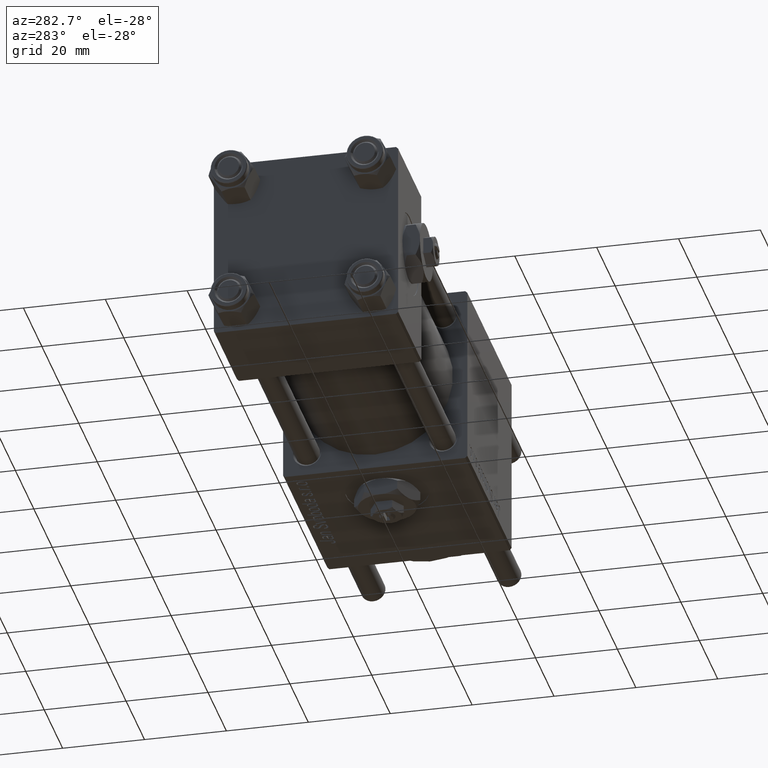
[diagram: clean part render]
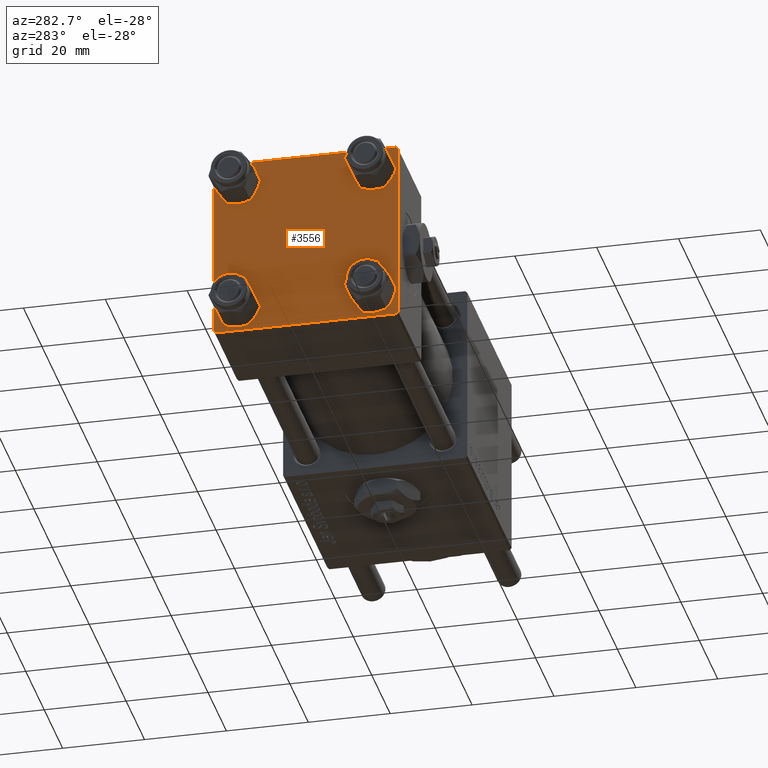
[diagram: same view with one face highlighted and labeled with its STEP entity id]
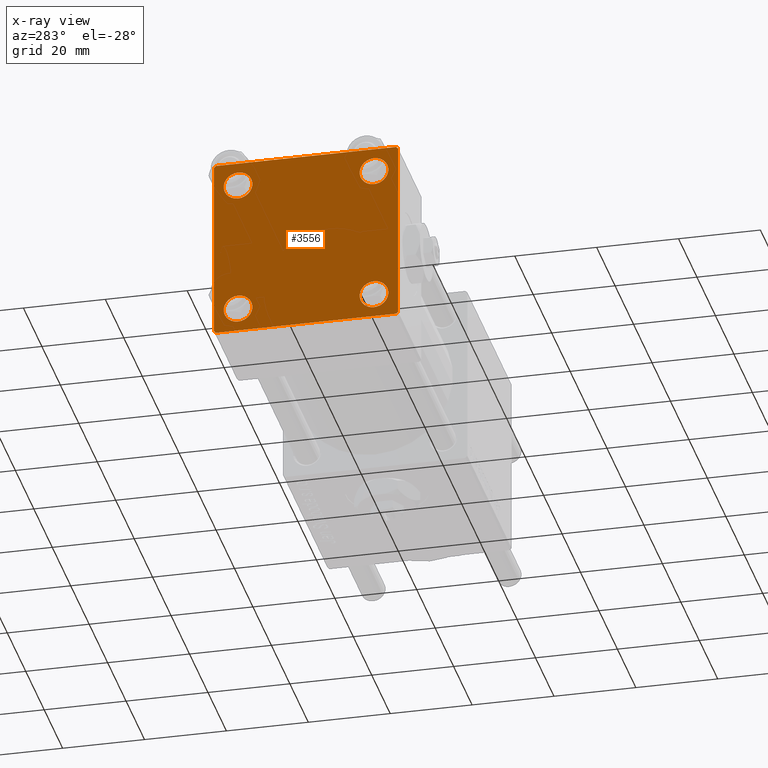
[diagram: x-ray of the same camera — body ghosted, the highlighted face saturated]
A machine part, auxiliary view. The second image highlights one B-rep face of the part: STEP entity #3556.
The next image is the same camera in x-ray: the body ghosted, the highlighted face saturated — about 0% of this face is hidden behind the body in this view.
In plain terms, the highlighted planar face has unit normal (-1, 0, 0).
Its self-contained STEP definition (entity closure, byte-faithful):
#61 = VERTEX_POINT ( 'NONE', #1535 ) ;
#228 = EDGE_CURVE ( 'NONE', #50337, #22564, #23500, .T. ) ;
#849 = DIRECTION ( 'NONE',  ( 0.000000000000000000, 0.000000000000000000, 1.000000000000000000 ) ) ;
#1424 = VECTOR ( 'NONE', #22375, 1000.000000000000114 ) ;
#1535 = CARTESIAN_POINT ( 'NONE',  ( 0.000000000000000000, 22.50000000000000000, -21.99999999999996803 ) ) ;
#1583 = EDGE_CURVE ( 'NONE', #22564, #50337, #54202, .T. ) ;
#1747 = DIRECTION ( 'NONE',  ( -0.000000000000000000, 0.7071067811865525687, 0.7071067811865425767 ) ) ;
#1815 = EDGE_LOOP ( 'NONE', ( #48747, #23921 ) ) ;
#2283 = LINE ( 'NONE', #51056, #37969 ) ;
#2573 = DIRECTION ( 'NONE',  ( 0.000000000000000000, -1.000000000000000000, -7.709882115452476934E-17 ) ) ;
#2952 = AXIS2_PLACEMENT_3D ( 'NONE', #30124, #48244, #21200 ) ;
#3068 = CARTESIAN_POINT ( 'NONE',  ( 0.000000000000000000, 22.50000000000000000, 21.99999999999999645 ) ) ;
#3275 = PLANE ( 'NONE',  #15401 ) ;
#3368 = CARTESIAN_POINT ( 'NONE',  ( 0.000000000000000000, 22.24999999999999645, 22.24999999999999645 ) ) ;
#3556 = ADVANCED_FACE ( 'NONE', ( #8311, #57662, #22276, #7727, #53496 ), #3275, .T. ) ;
#3791 = ORIENTED_EDGE ( 'NONE', *, *, #27887, .T. ) ;
#4091 = DIRECTION ( 'NONE',  ( 0.000000000000000000, 0.000000000000000000, 1.000000000000000000 ) ) ;
#4152 = DIRECTION ( 'NONE',  ( -1.000000000000000000, 0.000000000000000000, -0.000000000000000000 ) ) ;
#4589 = VERTEX_POINT ( 'NONE', #43344 ) ;
#4890 = DIRECTION ( 'NONE',  ( 1.000000000000000000, -0.000000000000000000, 0.000000000000000000 ) ) ;
#4988 = DIRECTION ( 'NONE',  ( 0.000000000000000000, 0.000000000000000000, 1.000000000000000000 ) ) ;
#5476 = CARTESIAN_POINT ( 'NONE',  ( 0.000000000000000000, 16.59999999999999787, 13.10000000000000675 ) ) ;
#7727 = FACE_BOUND ( 'NONE', #1815, .T. ) ;
#8311 = FACE_BOUND ( 'NONE', #17359, .T. ) ;
#8360 = CARTESIAN_POINT ( 'NONE',  ( 0.000000000000000000, 22.50000000000000000, 22.50000000000000355 ) ) ;
#8703 = ORIENTED_EDGE ( 'NONE', *, *, #43299, .T. ) ;
#9084 = EDGE_CURVE ( 'NONE', #27206, #40423, #46876, .T. ) ;
#10016 = CARTESIAN_POINT ( 'NONE',  ( 0.000000000000000000, 21.99999999999999289, -22.49999999999999645 ) ) ;
#10108 = CIRCLE ( 'NONE', #43321, 3.499999999999996003 ) ;
#13064 = DIRECTION ( 'NONE',  ( -0.000000000000000000, 0.000000000000000000, 1.000000000000000000 ) ) ;
#14048 = DIRECTION ( 'NONE',  ( -0.000000000000000000, -0.7071067811865426878, -0.7071067811865524577 ) ) ;
#14643 = CARTESIAN_POINT ( 'NONE',  ( 0.000000000000000000, 16.59999999999999787, -16.60000000000000497 ) ) ;
#15237 = CARTESIAN_POINT ( 'NONE',  ( 0.000000000000000000, 22.25000000000014566, -22.24999999999984013 ) ) ;
#15401 = AXIS2_PLACEMENT_3D ( 'NONE', #53790, #4152, #13064 ) ;
#16224 = EDGE_CURVE ( 'NONE', #23077, #23748, #26154, .T. ) ;
#16232 = DIRECTION ( 'NONE',  ( 0.000000000000000000, -0.7071067811865426878, 0.7071067811865524577 ) ) ;
#16836 = ORIENTED_EDGE ( 'NONE', *, *, #34790, .T. ) ;
#17069 = LINE ( 'NONE', #35200, #36715 ) ;
#17230 = DIRECTION ( 'NONE',  ( 0.000000000000000000, -1.000000000000000000, -2.312964634635742957E-16 ) ) ;
#17323 = EDGE_CURVE ( 'NONE', #19038, #19876, #40813, .T. ) ;
#17359 = EDGE_LOOP ( 'NONE', ( #55111, #41991 ) ) ;
#17625 = LINE ( 'NONE', #15237, #52824 ) ;
#18056 = CARTESIAN_POINT ( 'NONE',  ( 0.000000000000000000, -16.59999999999999076, 16.60000000000000853 ) ) ;
#18944 = CARTESIAN_POINT ( 'NONE',  ( 0.000000000000000000, 16.59999999999999787, 20.10000000000000142 ) ) ;
#19038 = VERTEX_POINT ( 'NONE', #24503 ) ;
#19763 = CARTESIAN_POINT ( 'NONE',  ( 0.000000000000000000, -16.59999999999999076, 16.60000000000000853 ) ) ;
#19833 = DIRECTION ( 'NONE',  ( 1.000000000000000000, -0.000000000000000000, 0.000000000000000000 ) ) ;
#19876 = VERTEX_POINT ( 'NONE', #3068 ) ;
#19989 = DIRECTION ( 'NONE',  ( 0.000000000000000000, 0.000000000000000000, 1.000000000000000000 ) ) ;
#20794 = VECTOR ( 'NONE', #16232, 1000.000000000000000 ) ;
#20938 = AXIS2_PLACEMENT_3D ( 'NONE', #21941, #19833, #4988 ) ;
#21200 = DIRECTION ( 'NONE',  ( 0.000000000000000000, 0.000000000000000000, 1.000000000000000000 ) ) ;
#21313 = VECTOR ( 'NONE', #17230, 1000.000000000000000 ) ;
#21822 = DIRECTION ( 'NONE',  ( 0.000000000000000000, 0.000000000000000000, -1.000000000000000000 ) ) ;
#21900 = CARTESIAN_POINT ( 'NONE',  ( 0.000000000000000000, -16.59999999999999076, -13.10000000000001030 ) ) ;
#21941 = CARTESIAN_POINT ( 'NONE',  ( 0.000000000000000000, 16.59999999999999787, -16.60000000000000497 ) ) ;
#22189 = ORIENTED_EDGE ( 'NONE', *, *, #16224, .T. ) ;
#22276 = FACE_BOUND ( 'NONE', #53114, .T. ) ;
#22375 = DIRECTION ( 'NONE',  ( 0.000000000000000000, 0.7071067811865474617, -0.7071067811865474617 ) ) ;
#22494 = EDGE_CURVE ( 'NONE', #28557, #4589, #28160, .T. ) ;
#22564 = VERTEX_POINT ( 'NONE', #5476 ) ;
#22855 = AXIS2_PLACEMENT_3D ( 'NONE', #19763, #51572, #28985 ) ;
#22860 = ORIENTED_EDGE ( 'NONE', *, *, #32388, .T. ) ;
#23077 = VERTEX_POINT ( 'NONE', #10016 ) ;
#23500 = CIRCLE ( 'NONE', #38700, 3.499999999999996003 ) ;
#23548 = DIRECTION ( 'NONE',  ( 0.000000000000000000, 0.000000000000000000, 1.000000000000000000 ) ) ;
#23748 = VERTEX_POINT ( 'NONE', #24614 ) ;
#23921 = ORIENTED_EDGE ( 'NONE', *, *, #1583, .T. ) ;
#24035 = CARTESIAN_POINT ( 'NONE',  ( 0.000000000000000000, -16.59999999999999076, -16.60000000000000853 ) ) ;
#24162 = DIRECTION ( 'NONE',  ( 1.000000000000000000, -0.000000000000000000, 0.000000000000000000 ) ) ;
#24503 = CARTESIAN_POINT ( 'NONE',  ( 0.000000000000000000, 21.99999999999999289, 22.50000000000000355 ) ) ;
#24614 = CARTESIAN_POINT ( 'NONE',  ( 0.000000000000000000, -21.99999999999997158, -22.50000000000000711 ) ) ;
#25196 = LINE ( 'NONE', #46626, #34041 ) ;
#25447 = CARTESIAN_POINT ( 'NONE',  ( 0.000000000000000000, -22.25000000000014566, -22.24999999999984013 ) ) ;
#26154 = LINE ( 'NONE', #57069, #21313 ) ;
#26325 = LINE ( 'NONE', #25447, #20794 ) ;
#26505 = LINE ( 'NONE', #8360, #39695 ) ;
#27206 = VERTEX_POINT ( 'NONE', #52580 ) ;
#27887 = EDGE_CURVE ( 'NONE', #19876, #61, #26505, .T. ) ;
#28160 = CIRCLE ( 'NONE', #33843, 3.499999999999996003 ) ;
#28557 = VERTEX_POINT ( 'NONE', #21900 ) ;
#28956 = CARTESIAN_POINT ( 'NONE',  ( 0.000000000000000000, -16.59999999999999076, -16.60000000000000853 ) ) ;
#28984 = CARTESIAN_POINT ( 'NONE',  ( 0.000000000000000000, 16.59999999999999787, -20.10000000000000142 ) ) ;
#28985 = DIRECTION ( 'NONE',  ( 0.000000000000000000, 0.000000000000000000, 1.000000000000000000 ) ) ;
#29621 = CARTESIAN_POINT ( 'NONE',  ( 0.000000000000000000, -21.99999999999997868, 22.50000000000000000 ) ) ;
#29930 = VERTEX_POINT ( 'NONE', #29621 ) ;
#30034 = EDGE_CURVE ( 'NONE', #23748, #42047, #26325, .T. ) ;
#30124 = CARTESIAN_POINT ( 'NONE',  ( 0.000000000000000000, 16.59999999999999787, 16.60000000000000497 ) ) ;
#30866 = EDGE_CURVE ( 'NONE', #19038, #29930, #2283, .T. ) ;
#31441 = DIRECTION ( 'NONE',  ( 1.000000000000000000, -0.000000000000000000, 0.000000000000000000 ) ) ;
#31596 = CARTESIAN_POINT ( 'NONE',  ( 0.000000000000000000, -16.59999999999999076, 20.10000000000000853 ) ) ;
#32388 = EDGE_CURVE ( 'NONE', #47827, #29930, #25196, .T. ) ;
#32683 = ORIENTED_EDGE ( 'NONE', *, *, #42448, .F. ) ;
#32868 = CARTESIAN_POINT ( 'NONE',  ( 0.000000000000000000, -16.59999999999999076, 13.10000000000001030 ) ) ;
#33032 = ORIENTED_EDGE ( 'NONE', *, *, #30034, .T. ) ;
#33089 = ORIENTED_EDGE ( 'NONE', *, *, #9084, .T. ) ;
#33843 = AXIS2_PLACEMENT_3D ( 'NONE', #28956, #4890, #46196 ) ;
#34041 = VECTOR ( 'NONE', #1747, 999.9999999999998863 ) ;
#34190 = CIRCLE ( 'NONE', #56047, 3.499999999999996003 ) ;
#34544 = ORIENTED_EDGE ( 'NONE', *, *, #42359, .T. ) ;
#34790 = EDGE_CURVE ( 'NONE', #40423, #27206, #57006, .T. ) ;
#35200 = CARTESIAN_POINT ( 'NONE',  ( 0.000000000000000000, -22.50000000000000000, 22.50000000000000000 ) ) ;
#35245 = EDGE_CURVE ( 'NONE', #43180, #41540, #57975, .T. ) ;
#36301 = CARTESIAN_POINT ( 'NONE',  ( 0.000000000000000000, -22.50000000000000000, -21.99999999999997158 ) ) ;
#36346 = DIRECTION ( 'NONE',  ( 1.000000000000000000, -0.000000000000000000, 0.000000000000000000 ) ) ;
#36715 = VECTOR ( 'NONE', #21822, 1000.000000000000000 ) ;
#37945 = ORIENTED_EDGE ( 'NONE', *, *, #30866, .F. ) ;
#37969 = VECTOR ( 'NONE', #2573, 1000.000000000000000 ) ;
#38700 = AXIS2_PLACEMENT_3D ( 'NONE', #45243, #36346, #23548 ) ;
#39695 = VECTOR ( 'NONE', #58001, 1000.000000000000000 ) ;
#40423 = VERTEX_POINT ( 'NONE', #28984 ) ;
#40813 = LINE ( 'NONE', #3368, #1424 ) ;
#41540 = VERTEX_POINT ( 'NONE', #32868 ) ;
#41991 = ORIENTED_EDGE ( 'NONE', *, *, #58464, .T. ) ;
#42047 = VERTEX_POINT ( 'NONE', #36301 ) ;
#42359 = EDGE_CURVE ( 'NONE', #4589, #28557, #10108, .T. ) ;
#42448 = EDGE_CURVE ( 'NONE', #47827, #42047, #17069, .T. ) ;
#43180 = VERTEX_POINT ( 'NONE', #31596 ) ;
#43299 = EDGE_CURVE ( 'NONE', #61, #23077, #17625, .T. ) ;
#43321 = AXIS2_PLACEMENT_3D ( 'NONE', #24035, #46017, #849 ) ;
#43344 = CARTESIAN_POINT ( 'NONE',  ( 0.000000000000000000, -16.59999999999999076, -20.10000000000000497 ) ) ;
#45085 = CARTESIAN_POINT ( 'NONE',  ( 0.000000000000000000, -22.50000000000000000, 22.00000000000000000 ) ) ;
#45243 = CARTESIAN_POINT ( 'NONE',  ( 0.000000000000000000, 16.59999999999999787, 16.60000000000000497 ) ) ;
#46017 = DIRECTION ( 'NONE',  ( 1.000000000000000000, -0.000000000000000000, 0.000000000000000000 ) ) ;
#46036 = EDGE_LOOP ( 'NONE', ( #46555, #34544 ) ) ;
#46196 = DIRECTION ( 'NONE',  ( 0.000000000000000000, 0.000000000000000000, 1.000000000000000000 ) ) ;
#46555 = ORIENTED_EDGE ( 'NONE', *, *, #22494, .T. ) ;
#46626 = CARTESIAN_POINT ( 'NONE',  ( -0.000000000000000000, -22.24999999999984013, 22.25000000000015277 ) ) ;
#46876 = CIRCLE ( 'NONE', #53518, 3.499999999999996003 ) ;
#47827 = VERTEX_POINT ( 'NONE', #45085 ) ;
#48244 = DIRECTION ( 'NONE',  ( 1.000000000000000000, -0.000000000000000000, 0.000000000000000000 ) ) ;
#48747 = ORIENTED_EDGE ( 'NONE', *, *, #228, .T. ) ;
#50337 = VERTEX_POINT ( 'NONE', #18944 ) ;
#51056 = CARTESIAN_POINT ( 'NONE',  ( 0.000000000000000000, 22.50000000000000000, 22.50000000000000355 ) ) ;
#51572 = DIRECTION ( 'NONE',  ( 1.000000000000000000, -0.000000000000000000, 0.000000000000000000 ) ) ;
#52225 = EDGE_LOOP ( 'NONE', ( #3791, #8703, #22189, #33032, #32683, #22860, #37945, #53791 ) ) ;
#52580 = CARTESIAN_POINT ( 'NONE',  ( 0.000000000000000000, 16.59999999999999787, -13.10000000000000675 ) ) ;
#52824 = VECTOR ( 'NONE', #14048, 1000.000000000000000 ) ;
#53114 = EDGE_LOOP ( 'NONE', ( #33089, #16836 ) ) ;
#53496 = FACE_OUTER_BOUND ( 'NONE', #52225, .T. ) ;
#53518 = AXIS2_PLACEMENT_3D ( 'NONE', #14643, #24162, #19989 ) ;
#53790 = CARTESIAN_POINT ( 'NONE',  ( 0.000000000000000000, 0.000000000000000000, 0.000000000000000000 ) ) ;
#53791 = ORIENTED_EDGE ( 'NONE', *, *, #17323, .T. ) ;
#54202 = CIRCLE ( 'NONE', #2952, 3.499999999999996003 ) ;
#55111 = ORIENTED_EDGE ( 'NONE', *, *, #35245, .T. ) ;
#56047 = AXIS2_PLACEMENT_3D ( 'NONE', #18056, #31441, #4091 ) ;
#57006 = CIRCLE ( 'NONE', #20938, 3.499999999999996003 ) ;
#57069 = CARTESIAN_POINT ( 'NONE',  ( 0.000000000000000000, 22.50000000000000000, -22.49999999999999645 ) ) ;
#57662 = FACE_BOUND ( 'NONE', #46036, .T. ) ;
#57975 = CIRCLE ( 'NONE', #22855, 3.499999999999996003 ) ;
#58001 = DIRECTION ( 'NONE',  ( 0.000000000000000000, 0.000000000000000000, -1.000000000000000000 ) ) ;
#58464 = EDGE_CURVE ( 'NONE', #41540, #43180, #34190, .T. ) ;